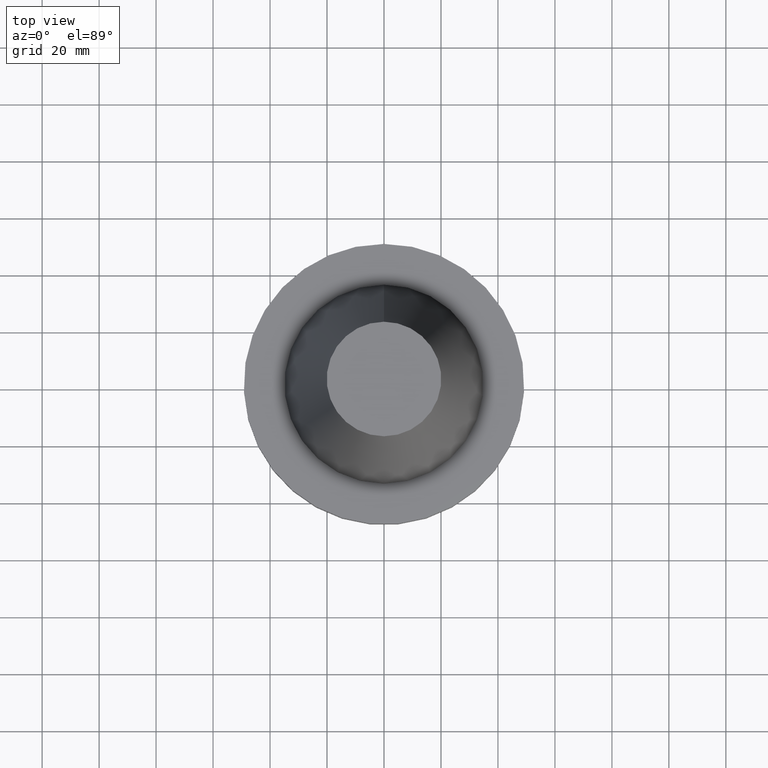
[diagram: clean part render]
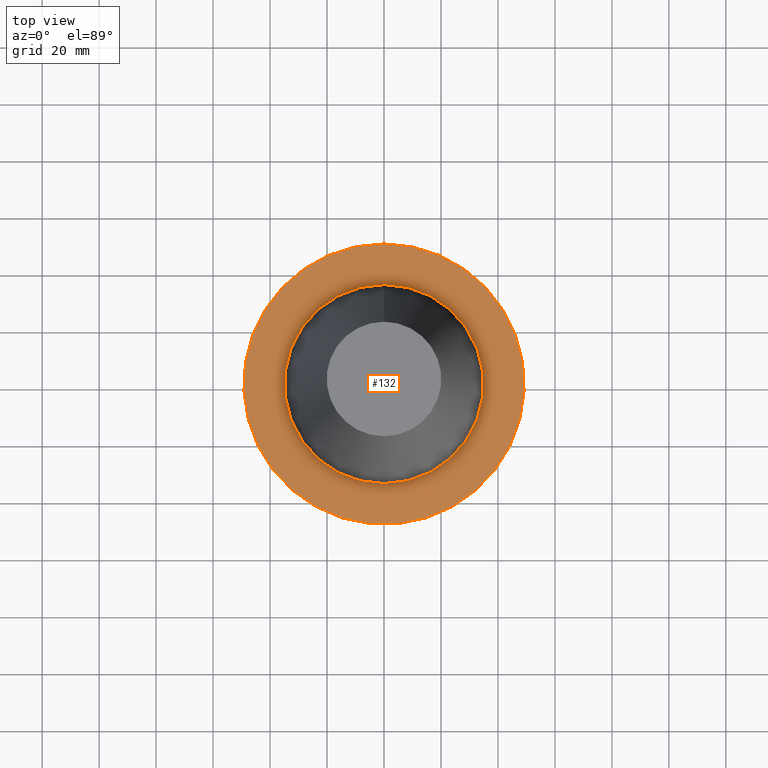
[diagram: same view with one face highlighted and labeled with its STEP entity id]
A machine part, top view. The second image highlights one B-rep face of the part: STEP entity #132.
In plain terms, the highlighted planar face has unit normal (-0, -0, 1).
Its self-contained STEP definition (entity closure, byte-faithful):
#78=EDGE_CURVE('Unnamed[1]',#188,#188,#189,.T.);
#94=EDGE_CURVE('Unnamed[1]',#212,#212,#213,.T.);
#132=ADVANCED_FACE('Unnamed[1]',(#270,#271),#272,.T.);
#188=VERTEX_POINT('',#330);
#189=CIRCLE('',#331,34.925);
#212=VERTEX_POINT('',#360);
#213=CIRCLE('',#361,49.2125);
#270=FACE_OUTER_BOUND('',#432,.T.);
#271=FACE_BOUND('',#433,.T.);
#272=PLANE('',#434);
#330=CARTESIAN_POINT('',(9.18485099360511E-017,34.925,-1.5));
#331=AXIS2_PLACEMENT_3D('',#481,#482,#483);
#360=CARTESIAN_POINT('',(9.18485099360509E-017,49.2125,-1.49999999999999));
#361=AXIS2_PLACEMENT_3D('',#509,#510,#511);
#432=EDGE_LOOP('',(#571));
#433=EDGE_LOOP('',(#572));
#434=AXIS2_PLACEMENT_3D('',#573,#574,#575);
#481=CARTESIAN_POINT('',(9.18485099360515E-017,1.83697019872103E-016,-1.5));
#482=DIRECTION('',(6.12323399573677E-017,1.22464679914735E-016,-1.0));
#483=DIRECTION('',(-1.23259516440783E-032,1.0,1.22464679914735E-016));
#509=CARTESIAN_POINT('',(9.18485099360515E-017,1.83697019872103E-016,-1.5));
#510=DIRECTION('',(6.12323399573677E-017,1.22464679914735E-016,-1.0));
#511=DIRECTION('',(-1.23259516440783E-032,1.0,1.22464679914735E-016));
#571=ORIENTED_EDGE('',*,*,#94,.F.);
#572=ORIENTED_EDGE('',*,*,#78,.T.);
#573=CARTESIAN_POINT('',(9.1848509936051E-017,42.06875,-1.49999999999999));
#574=DIRECTION('',(-6.12323399573677E-017,-1.22464679914735E-016,1.0));
#575=DIRECTION('',(1.23259516440783E-032,-1.0,-1.22464679914735E-016));